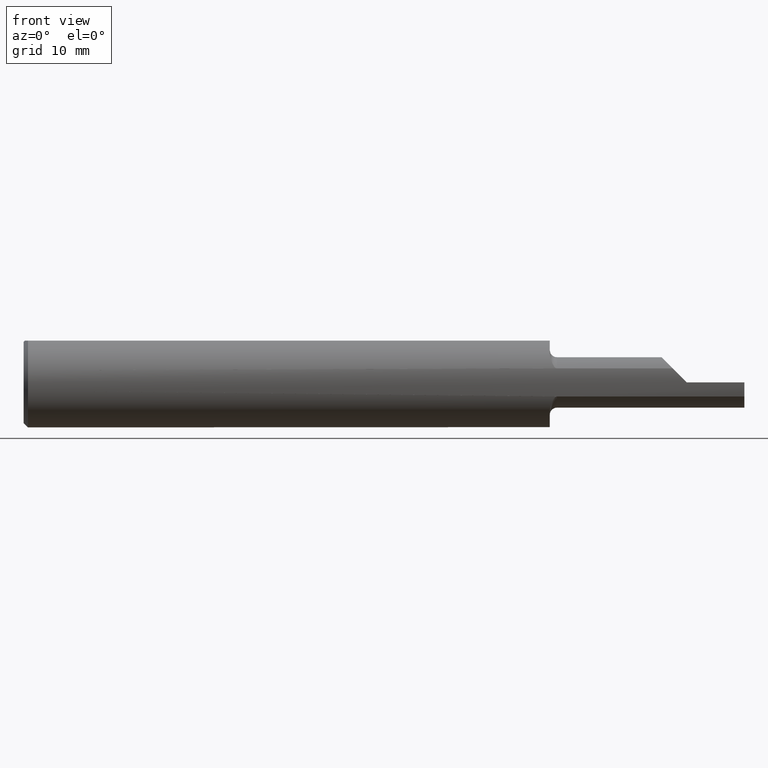
[diagram: clean part render]
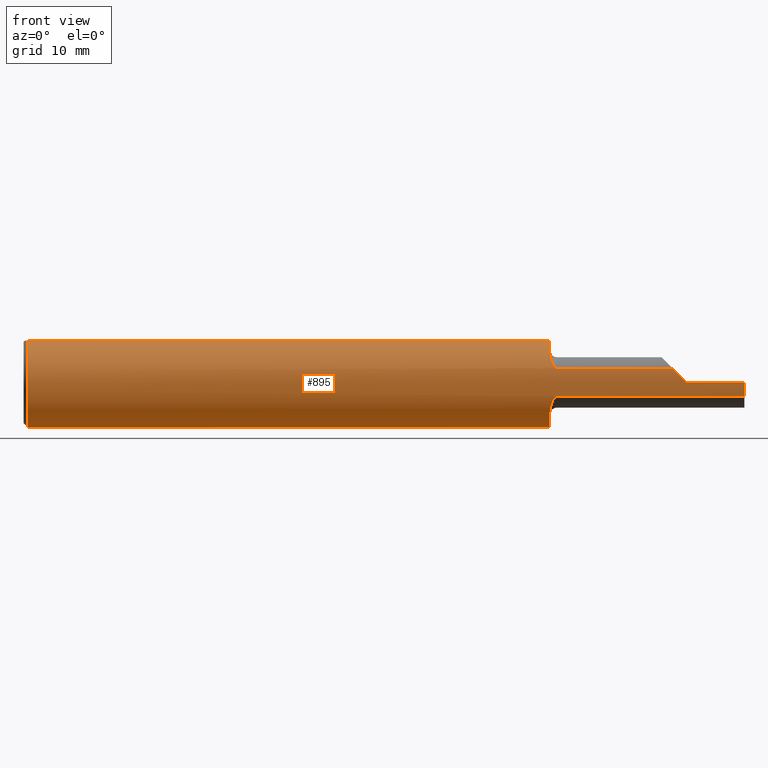
[diagram: same view with one face highlighted and labeled with its STEP entity id]
A machine part, front view. The second image highlights one B-rep face of the part: STEP entity #895.
In plain terms, the highlighted cylindrical surface (partial cylindrical patch) has radius 3.9649 mm, axis along (-1, -0, -0).
Its self-contained STEP definition (entity closure, byte-faithful):
#1 = ORIENTED_EDGE ( 'NONE', *, *, #145, .T. ) ;
#2 = CARTESIAN_POINT ( 'NONE',  ( 1.849999999999999867, -0.1483222222222221054, -0.04865930943880881349 ) ) ;
#6 = CARTESIAN_POINT ( 'NONE',  ( 1.825000000000000400, -0.1194474109263642114, -0.1006886055822860393 ) ) ;
#11 = CARTESIAN_POINT ( 'NONE',  ( 1.824999999999999956, -0.1152534391534390523, -0.1052798877435976166 ) ) ;
#15 = CARTESIAN_POINT ( 'NONE',  ( 1.828500940198883429, -0.1336093403149761771, -0.08093965625166067712 ) ) ;
#25 = DIRECTION ( 'NONE',  ( 0.000000000000000000, 0.000000000000000000, 1.000000000000000000 ) ) ;
#42 = EDGE_CURVE ( 'NONE', #681, #687, #933, .T. ) ;
#48 = VERTEX_POINT ( 'NONE', #754 ) ;
#50 = CARTESIAN_POINT ( 'NONE',  ( 1.824999999999999956, -0.05756040305626777820, 0.1450999999999999790 ) ) ;
#62 = ORIENTED_EDGE ( 'NONE', *, *, #217, .F. ) ;
#69 = CARTESIAN_POINT ( 'NONE',  ( 1.824999999999999956, -0.1152534391534390523, 0.1052798877435976166 ) ) ;
#92 = DIRECTION ( 'NONE',  ( -1.000000000000000000, -0.000000000000000000, -0.000000000000000000 ) ) ;
#94 = CARTESIAN_POINT ( 'NONE',  ( 0.01499999999999970281, 0.000000000000000000, -0.1560999999999999888 ) ) ;
#96 = ORIENTED_EDGE ( 'NONE', *, *, #580, .F. ) ;
#98 = CARTESIAN_POINT ( 'NONE',  ( 1.846912290126283329, -0.1481422360124338977, -0.04921189835249257377 ) ) ;
#101 = VERTEX_POINT ( 'NONE', #609 ) ;
#105 = AXIS2_PLACEMENT_3D ( 'NONE', #403, #757, #899 ) ;
#113 = DIRECTION ( 'NONE',  ( -1.000000000000000000, -0.000000000000000000, -0.000000000000000000 ) ) ;
#116 = VECTOR ( 'NONE', #113, 39.37007874015748143 ) ;
#119 = VECTOR ( 'NONE', #500, 39.37007874015748143 ) ;
#120 = ORIENTED_EDGE ( 'NONE', *, *, #289, .F. ) ;
#122 = CARTESIAN_POINT ( 'NONE',  ( 1.824999999999999956, 0.05756040305626777126, 0.1450999999999999790 ) ) ;
#129 = VERTEX_POINT ( 'NONE', #546 ) ;
#133 = ORIENTED_EDGE ( 'NONE', *, *, #558, .F. ) ;
#135 = CARTESIAN_POINT ( 'NONE',  ( 2.251340690561190794, -0.1483222222222220776, 0.04865930943880889675 ) ) ;
#144 = VERTEX_POINT ( 'NONE', #685 ) ;
#145 = EDGE_CURVE ( 'NONE', #551, #144, #623, .T. ) ;
#155 = CARTESIAN_POINT ( 'NONE',  ( 1.848423634396825666, -0.1483222222223044007, -0.04865930943875496073 ) ) ;
#158 = CARTESIAN_POINT ( 'NONE',  ( 1.843142483653402275, -0.1472352028746813646, 0.05186888255903812639 ) ) ;
#162 = AXIS2_PLACEMENT_3D ( 'NONE', #626, #631, #769 ) ;
#166 = CARTESIAN_POINT ( 'NONE',  ( 1.824999999999999956, -0.1152534391534390523, 0.1052798877435976166 ) ) ;
#170 = EDGE_CURVE ( 'NONE', #101, #891, #770, .T. ) ;
#184 = CYLINDRICAL_SURFACE ( 'NONE', #627, 0.1560999999999999888 ) ;
#186 = CARTESIAN_POINT ( 'NONE',  ( 1.849999999999999867, -0.1483222222222221054, 0.04865930943880881349 ) ) ;
#204 = CARTESIAN_POINT ( 'NONE',  ( 1.824999999999999956, 0.000000000000000000, 0.000000000000000000 ) ) ;
#209 = ORIENTED_EDGE ( 'NONE', *, *, #797, .T. ) ;
#217 = EDGE_CURVE ( 'NONE', #551, #687, #373, .T. ) ;
#219 = B_SPLINE_CURVE_WITH_KNOTS ( 'NONE', 3,
 ( #11, #6, #673, #305, #15, #317, #238, #534, #758, #235, #816, #98, #155, #684 ),
 .UNSPECIFIED., .F., .F.,
 ( 4, 2, 2, 2, 2, 2, 4 ),
 ( 0.000000000000000000, 0.0004670506114816719875, 0.0009341012229633439750, 0.001401151834445016125, 0.001634677140185847267, 0.001751439793056262404, 0.001868202445926677542 ),
 .UNSPECIFIED. ) ;
#235 = CARTESIAN_POINT ( 'NONE',  ( 1.843177178722074760, -0.1472468593966860528, -0.05183574833930116449 ) ) ;
#236 = CARTESIAN_POINT ( 'NONE',  ( 1.825472197989094880, -0.1233406036881489476, 0.09587047024759799696 ) ) ;
#238 = CARTESIAN_POINT ( 'NONE',  ( 1.834139466932422913, -0.1419217972574611242, -0.06523403485447477890 ) ) ;
#239 = CARTESIAN_POINT ( 'NONE',  ( 1.834127177403178210, -0.1419065933454018158, 0.06526588615221527723 ) ) ;
#248 = CARTESIAN_POINT ( 'NONE',  ( 1.825000000000000400, -0.1194473140465537320, 0.1006887116398777066 ) ) ;
#250 = CARTESIAN_POINT ( 'NONE',  ( 2.500000000000000000, 0.000000000000000000, 0.000000000000000000 ) ) ;
#252 = CARTESIAN_POINT ( 'NONE',  ( 1.838439982755449842, -0.1450712014230792490, 0.05769777552208709553 ) ) ;
#255 = DIRECTION ( 'NONE',  ( -1.000000000000000000, -0.000000000000000000, -0.000000000000000000 ) ) ;
#267 = LINE ( 'NONE', #410, #116 ) ;
#271 = ORIENTED_EDGE ( 'NONE', *, *, #170, .T. ) ;
#276 = CARTESIAN_POINT ( 'NONE',  ( 2.300000000000000266, -0.1560999999999999888, -4.286122238378320280E-17 ) ) ;
#284 = CARTESIAN_POINT ( 'NONE',  ( 2.133750000000000036, -0.1483222222222221054, 0.04865930943880881349 ) ) ;
#289 = EDGE_CURVE ( 'NONE', #681, #814, #931, .T. ) ;
#305 = CARTESIAN_POINT ( 'NONE',  ( 1.827213181498967387, -0.1303732011993284645, -0.08606307062930522445 ) ) ;
#312 = VERTEX_POINT ( 'NONE', #2 ) ;
#314 = FACE_OUTER_BOUND ( 'NONE', #879, .T. ) ;
#317 = CARTESIAN_POINT ( 'NONE',  ( 1.831987253728904141, -0.1393884060084945309, -0.07052344322245764074 ) ) ;
#327 = CARTESIAN_POINT ( 'NONE',  ( 2.267079460017583870, -0.1534855594598297235, 0.03292053998241566137 ) ) ;
#351 = CARTESIAN_POINT ( 'NONE',  ( 2.500000000000000000, -0.1560999999999999888, -4.286122238378320280E-17 ) ) ;
#361 = LINE ( 'NONE', #938, #872 ) ;
#368 = ORIENTED_EDGE ( 'NONE', *, *, #42, .T. ) ;
#373 = CIRCLE ( 'NONE', #382, 0.1560999999999999888 ) ;
#374 = DIRECTION ( 'NONE',  ( 1.000000000000000000, -0.000000000000000000, -0.000000000000000000 ) ) ;
#382 = AXIS2_PLACEMENT_3D ( 'NONE', #204, #553, #475 ) ;
#403 = CARTESIAN_POINT ( 'NONE',  ( 0.01499999999999970281, 0.000000000000000000, 0.000000000000000000 ) ) ;
#410 = CARTESIAN_POINT ( 'NONE',  ( 2.133750000000000036, -0.1483222222222221054, -0.04865930943880881349 ) ) ;
#420 = CARTESIAN_POINT ( 'NONE',  ( 1.824999999999999956, 0.000000000000000000, 0.000000000000000000 ) ) ;
#430 = CARTESIAN_POINT ( 'NONE',  ( 0.01499999999999970281, 0.05756040305626777126, 0.1450999999999999790 ) ) ;
#456 = CARTESIAN_POINT ( 'NONE',  ( 1.844287531111194811, -0.1475964515845978875, 0.05082537659279134923 ) ) ;
#475 = DIRECTION ( 'NONE',  ( 0.000000000000000000, 0.000000000000000000, -1.000000000000000000 ) ) ;
#484 = EDGE_CURVE ( 'NONE', #129, #312, #219, .T. ) ;
#494 =( BOUNDED_CURVE ( )  B_SPLINE_CURVE ( 3, ( #276, #862, #327, #694 ),
 .UNSPECIFIED., .F., .T. ) 
 B_SPLINE_CURVE_WITH_KNOTS ( ( 4, 4 ),
 ( 4.712388980384687898, 5.029390440538067608 ),
 .UNSPECIFIED. ) 
 CURVE ( )  GEOMETRIC_REPRESENTATION_ITEM ( )  RATIONAL_B_SPLINE_CURVE ( ( 1.000000000000000000, 0.9916433564879546525, 0.9916433564879546525, 1.000000000000000000 ) ) 
 REPRESENTATION_ITEM ( '' )  );
#500 = DIRECTION ( 'NONE',  ( -1.000000000000000000, -0.000000000000000000, -0.000000000000000000 ) ) ;
#505 = VERTEX_POINT ( 'NONE', #94 ) ;
#507 = CIRCLE ( 'NONE', #809, 0.1560999999999999888 ) ;
#510 = ORIENTED_EDGE ( 'NONE', *, *, #544, .F. ) ;
#534 = CARTESIAN_POINT ( 'NONE',  ( 1.838473108792487931, -0.1450923729584386868, -0.05764485900181662986 ) ) ;
#535 = CARTESIAN_POINT ( 'NONE',  ( 1.827226674330529876, -0.1304125201963227398, 0.08600364038630171903 ) ) ;
#544 = EDGE_CURVE ( 'NONE', #101, #48, #795, .T. ) ;
#546 = CARTESIAN_POINT ( 'NONE',  ( 1.824999999999999956, -0.1152534391534390523, -0.1052798877435976166 ) ) ;
#551 = VERTEX_POINT ( 'NONE', #50 ) ;
#553 = DIRECTION ( 'NONE',  ( 1.000000000000000000, 0.000000000000000000, 0.000000000000000000 ) ) ;
#558 = EDGE_CURVE ( 'NONE', #48, #312, #267, .T. ) ;
#562 = DIRECTION ( 'NONE',  ( 0.000000000000000000, 0.000000000000000000, -1.000000000000000000 ) ) ;
#574 = DIRECTION ( 'NONE',  ( 1.000000000000000000, 0.000000000000000000, 0.000000000000000000 ) ) ;
#580 = EDGE_CURVE ( 'NONE', #129, #675, #658, .T. ) ;
#583 = VECTOR ( 'NONE', #863, 39.37007874015748143 ) ;
#585 = EDGE_CURVE ( 'NONE', #891, #814, #494, .T. ) ;
#602 = CARTESIAN_POINT ( 'NONE',  ( 1.831986249577412185, -0.1393860781203350718, 0.07052722238229833240 ) ) ;
#609 = CARTESIAN_POINT ( 'NONE',  ( 2.500000000000000000, -0.1560999999999999888, -4.286122238378320280E-17 ) ) ;
#618 = CARTESIAN_POINT ( 'NONE',  ( 1.840079856500522082, -0.1460410296156850474, 0.05517908519247215204 ) ) ;
#623 = LINE ( 'NONE', #911, #946 ) ;
#626 = CARTESIAN_POINT ( 'NONE',  ( 2.500000000000000000, 0.000000000000000000, 0.000000000000000000 ) ) ;
#627 = AXIS2_PLACEMENT_3D ( 'NONE', #250, #92, #25 ) ;
#631 = DIRECTION ( 'NONE',  ( 1.000000000000000000, 0.000000000000000000, 0.000000000000000000 ) ) ;
#649 = CARTESIAN_POINT ( 'NONE',  ( 0.01499999999999970281, 0.000000000000000000, 0.000000000000000000 ) ) ;
#658 = CIRCLE ( 'NONE', #824, 0.1560999999999999888 ) ;
#664 = DIRECTION ( 'NONE',  ( 0.000000000000000000, 0.000000000000000000, -1.000000000000000000 ) ) ;
#671 = CARTESIAN_POINT ( 'NONE',  ( 1.846903641765111237, -0.1481407958389036605, 0.04921621718884816588 ) ) ;
#673 = CARTESIAN_POINT ( 'NONE',  ( 1.825465807751463165, -0.1232996061929553105, -0.09592304639536579358 ) ) ;
#674 = CARTESIAN_POINT ( 'NONE',  ( 1.848411864998184440, -0.1483222222222221054, 0.04865930943880882042 ) ) ;
#675 = VERTEX_POINT ( 'NONE', #122 ) ;
#681 = VERTEX_POINT ( 'NONE', #186 ) ;
#684 = CARTESIAN_POINT ( 'NONE',  ( 1.849999999999999867, -0.1483222222222221054, -0.04865930943880881349 ) ) ;
#685 = CARTESIAN_POINT ( 'NONE',  ( 0.01499999999999970107, -0.05756040305626777126, 0.1450999999999999790 ) ) ;
#687 = VERTEX_POINT ( 'NONE', #69 ) ;
#694 = CARTESIAN_POINT ( 'NONE',  ( 2.251340690561190794, -0.1483222222222220776, 0.04865930943880889675 ) ) ;
#722 = ORIENTED_EDGE ( 'NONE', *, *, #484, .T. ) ;
#737 = ORIENTED_EDGE ( 'NONE', *, *, #782, .T. ) ;
#739 = ORIENTED_EDGE ( 'NONE', *, *, #585, .T. ) ;
#754 = CARTESIAN_POINT ( 'NONE',  ( 2.500000000000000000, -0.1483222222222221054, -0.04865930943880888288 ) ) ;
#757 = DIRECTION ( 'NONE',  ( 1.000000000000000000, -0.000000000000000000, -0.000000000000000000 ) ) ;
#758 = CARTESIAN_POINT ( 'NONE',  ( 1.840106298963160025, -0.1460549971287457283, -0.05514197535501665776 ) ) ;
#769 = DIRECTION ( 'NONE',  ( 0.000000000000000000, 0.000000000000000000, -1.000000000000000000 ) ) ;
#770 = LINE ( 'NONE', #351, #119 ) ;
#782 = EDGE_CURVE ( 'NONE', #144, #505, #507, .T. ) ;
#793 = ORIENTED_EDGE ( 'NONE', *, *, #955, .T. ) ;
#795 = CIRCLE ( 'NONE', #162, 0.1560999999999999888 ) ;
#797 = EDGE_CURVE ( 'NONE', #817, #675, #361, .T. ) ;
#809 = AXIS2_PLACEMENT_3D ( 'NONE', #649, #374, #664 ) ;
#814 = VERTEX_POINT ( 'NONE', #135 ) ;
#816 = CARTESIAN_POINT ( 'NONE',  ( 1.844290005174224589, -0.1475973241759682697, -0.05082285830523344816 ) ) ;
#817 = VERTEX_POINT ( 'NONE', #430 ) ;
#824 = AXIS2_PLACEMENT_3D ( 'NONE', #420, #856, #562 ) ;
#830 = CARTESIAN_POINT ( 'NONE',  ( 1.828505049239872449, -0.1336168144122109880, 0.08092660117083304294 ) ) ;
#856 = DIRECTION ( 'NONE',  ( 1.000000000000000000, 0.000000000000000000, 0.000000000000000000 ) ) ;
#862 = CARTESIAN_POINT ( 'NONE',  ( 2.283435914893034990, -0.1561000000000000165, 0.01656408510696423184 ) ) ;
#863 = DIRECTION ( 'NONE',  ( 1.000000000000000000, 0.000000000000000000, 0.000000000000000000 ) ) ;
#872 = VECTOR ( 'NONE', #574, 39.37007874015748143 ) ;
#879 = EDGE_LOOP ( 'NONE', ( #133, #510, #271, #739, #120, #368, #62, #1, #737, #793, #209, #96, #722 ) ) ;
#891 = VERTEX_POINT ( 'NONE', #905 ) ;
#895 = ADVANCED_FACE ( 'NONE', ( #314 ), #184, .T. ) ;
#899 = DIRECTION ( 'NONE',  ( 0.000000000000000000, 0.000000000000000000, -1.000000000000000000 ) ) ;
#903 = CARTESIAN_POINT ( 'NONE',  ( 1.849999999999999867, -0.1483222222222221054, 0.04865930943880881349 ) ) ;
#905 = CARTESIAN_POINT ( 'NONE',  ( 2.300000000000000266, -0.1560999999999999888, -4.286122238378320280E-17 ) ) ;
#911 = CARTESIAN_POINT ( 'NONE',  ( 2.500000000000000000, -0.05756040305626777126, 0.1450999999999999790 ) ) ;
#931 = LINE ( 'NONE', #284, #583 ) ;
#933 = B_SPLINE_CURVE_WITH_KNOTS ( 'NONE', 3,
 ( #903, #674, #671, #456, #158, #618, #252, #239, #602, #830, #535, #236, #248, #166 ),
 .UNSPECIFIED., .F., .F.,
 ( 4, 2, 2, 2, 2, 2, 4 ),
 ( 0.000000000000000000, 0.0001185999505355383082, 0.0002371999010710766165, 0.0004743998021421665144, 0.0009487996042843452804, 0.001423199406426524372, 0.001897599208568703571 ),
 .UNSPECIFIED. ) ;
#934 = CIRCLE ( 'NONE', #105, 0.1560999999999999888 ) ;
#938 = CARTESIAN_POINT ( 'NONE',  ( 2.500000000000000000, 0.05756040305626777126, 0.1450999999999999790 ) ) ;
#946 = VECTOR ( 'NONE', #255, 39.37007874015748143 ) ;
#955 = EDGE_CURVE ( 'NONE', #505, #817, #934, .T. ) ;